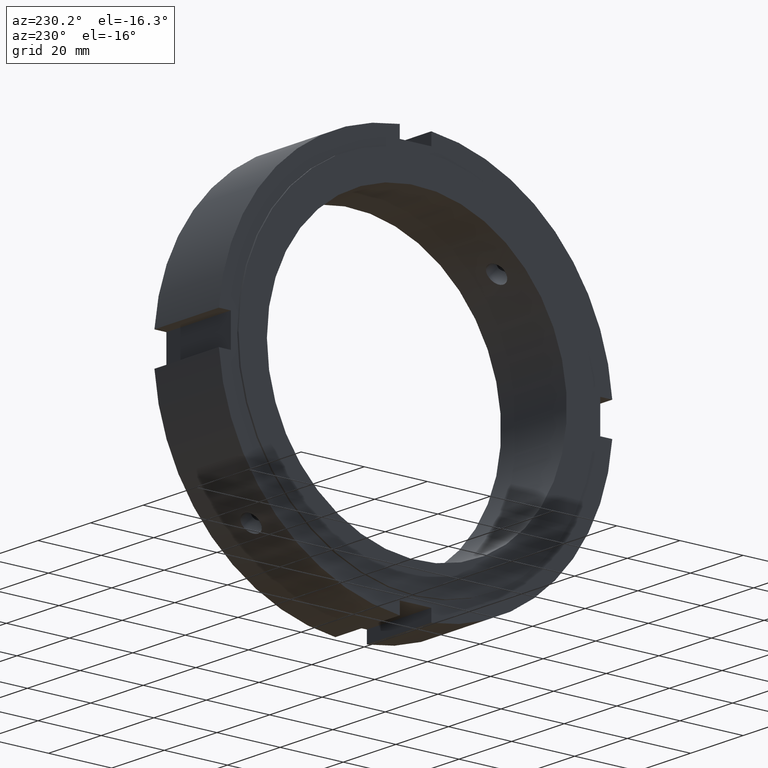
[diagram: clean part render]
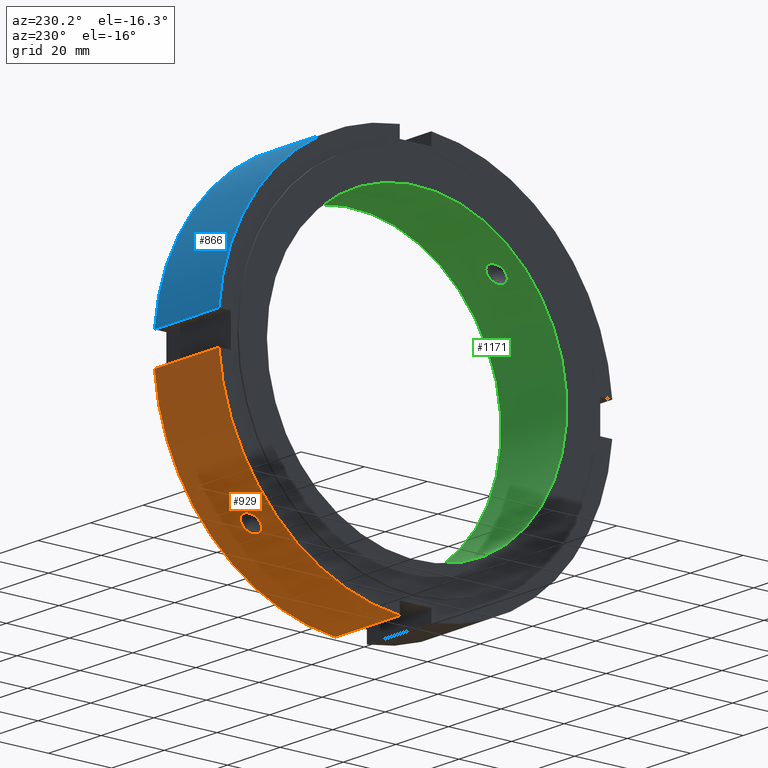
[diagram: same view with three faces highlighted in distinct colors, each labeled with its STEP entity id]
A machine part, auxiliary view with three faces highlighted in distinct colors.
Their STEP definitions:

[orange] entity #929 — the highlighted cylindrical surface (partial cylindrical patch) has radius 62.5 mm, axis along (1, 0, 0).
#439=CARTESIAN_POINT('',(9.999999999999986,41.94774695692054,-46.331809000277161));
#440=VERTEX_POINT('',#439);
#441=CARTESIAN_POINT('',(9.999999999999986,41.947746956920547,-46.331809000277147));
#442=CARTESIAN_POINT('',(10.389311472079699,41.947746956920547,-46.331809000277147));
#443=CARTESIAN_POINT('',(10.804528778918279,42.005612180828052,-46.279624275112923));
#444=CARTESIAN_POINT('',(11.568285816582263,42.239593456444702,-46.06616787121947));
#445=CARTESIAN_POINT('',(11.916830960488426,42.415559283118895,-45.904750942019504));
#446=CARTESIAN_POINT('',(12.467231026573746,42.818409226853156,-45.529217647564835));
#447=CARTESIAN_POINT('',(12.70579670309515,43.072138422683111,-45.290029537403164));
#448=CARTESIAN_POINT('',(13.022182957264352,43.622449764837668,-44.760225204025431));
#449=CARTESIAN_POINT('',(13.099999999999987,43.918889098569672,-44.469458549748765));
#450=CARTESIAN_POINT('',(13.099999999999987,44.469458549748772,-43.918889098569664));
#451=CARTESIAN_POINT('',(13.022182957264343,44.760225204025438,-43.622449764837668));
#452=CARTESIAN_POINT('',(12.705796703095125,45.290029537403178,-43.072138422683111));
#453=CARTESIAN_POINT('',(12.467231026573744,45.529217647564835,-42.818409226853149));
#454=CARTESIAN_POINT('',(11.916830960488415,45.904750942019497,-42.415559283118903));
#455=CARTESIAN_POINT('',(11.568285816582256,46.066167871219477,-42.239593456444709));
#456=CARTESIAN_POINT('',(10.80452877891827,46.27962427511293,-42.005612180828066));
#457=CARTESIAN_POINT('',(10.389311472079699,46.331809000277161,-41.94774695692054));
#458=CARTESIAN_POINT('',(9.610688527920274,46.331809000277161,-41.94774695692054));
#459=CARTESIAN_POINT('',(9.195471221081702,46.27962427511293,-42.005612180828066));
#460=CARTESIAN_POINT('',(8.431714183417716,46.066167871219477,-42.239593456444709));
#461=CARTESIAN_POINT('',(8.083169039511557,45.904750942019497,-42.415559283118903));
#462=CARTESIAN_POINT('',(7.532768973426229,45.529217647564835,-42.818409226853149));
#463=CARTESIAN_POINT('',(7.294203296904847,45.290029537403178,-43.072138422683111));
#464=CARTESIAN_POINT('',(6.97781704273563,44.760225204025438,-43.622449764837668));
#465=CARTESIAN_POINT('',(6.899999999999988,44.469458549748772,-43.918889098569664));
#466=CARTESIAN_POINT('',(6.899999999999984,43.918889098569672,-44.469458549748765));
#467=CARTESIAN_POINT('',(6.977817042735622,43.622449764837668,-44.760225204025431));
#468=CARTESIAN_POINT('',(7.294203296904823,43.072138422683111,-45.290029537403164));
#469=CARTESIAN_POINT('',(7.532768973426228,42.818409226853156,-45.529217647564835));
#470=CARTESIAN_POINT('',(8.083169039511549,42.415559283118895,-45.904750942019504));
#471=CARTESIAN_POINT('',(8.431714183417711,42.239593456444702,-46.06616787121947));
#472=CARTESIAN_POINT('',(9.195471221081697,42.005612180828052,-46.279624275112923));
#473=CARTESIAN_POINT('',(9.610688527920278,41.947746956920547,-46.331809000277147));
#474=CARTESIAN_POINT('',(9.999999999999989,41.947746956920547,-46.331809000277147));
#475=B_SPLINE_CURVE_WITH_KNOTS('',3,(#441,#442,#443,#444,#445,#446,#447,#448,#449,#450,#451,#452,#453,#454,#455,#456,#457,#458,#459,#460,#461,#462,#463,#464,#465,#466,#467,#468,#469,#470,#471,#472,#473,#474),.UNSPECIFIED.,.T.,.U.,(4,2,2,2,2,2,2,2,2,2,2,2,2,2,2,2,4),(0.0,0.116793441623914,0.233586883247827,0.350380300980696,0.467173718713565,0.583967136446434,0.700760554179303,0.817553995803216,0.93434743742713,1.051140879051044,1.167934320674957,1.284727738407826,1.401521156140694,1.518314573873564,1.635107991606433,1.751901433230346,1.86869487485426),.UNSPECIFIED.);
#476=EDGE_CURVE('',#440,#440,#475,.T.);
#573=CARTESIAN_POINT('',(0.499999999999985,4.999999999999985,-62.299678971885555));
#574=VERTEX_POINT('',#573);
#583=CARTESIAN_POINT('',(24.999999999999982,4.999999999999985,-62.299678971885555));
#584=VERTEX_POINT('',#583);
#585=CARTESIAN_POINT('',(24.999999999999982,4.999999999999985,-62.299678971885555));
#586=DIRECTION('',(-1.0,0.0,0.0));
#587=VECTOR('',#586,24.499999999999996);
#588=LINE('',#585,#587);
#589=EDGE_CURVE('',#584,#574,#588,.T.);
#894=CARTESIAN_POINT('',(12.749999999999984,0.0,0.0));
#895=DIRECTION('',(1.0,0.0,0.0));
#896=DIRECTION('',(0.0,1.0,0.0));
#897=AXIS2_PLACEMENT_3D('',#894,#895,#896);
#898=CYLINDRICAL_SURFACE('',#897,62.5);
#899=ORIENTED_EDGE('',*,*,#589,.T.);
#900=CARTESIAN_POINT('',(0.499999999999985,62.299678971885555,-4.999999999999996));
#901=VERTEX_POINT('',#900);
#902=CARTESIAN_POINT('',(0.499999999999985,0.0,0.0));
#903=DIRECTION('',(1.0,0.0,0.0));
#904=DIRECTION('',(0.0,1.0,0.0));
#905=AXIS2_PLACEMENT_3D('',#902,#903,#904);
#906=CIRCLE('',#905,62.5);
#907=EDGE_CURVE('',#574,#901,#906,.T.);
#908=ORIENTED_EDGE('',*,*,#907,.T.);
#909=CARTESIAN_POINT('',(24.999999999999982,62.299678971885555,-4.999999999999996));
#910=VERTEX_POINT('',#909);
#911=CARTESIAN_POINT('',(0.499999999999986,62.299678971885555,-4.999999999999996));
#912=DIRECTION('',(1.0,0.0,0.0));
#913=VECTOR('',#912,24.499999999999996);
#914=LINE('',#911,#913);
#915=EDGE_CURVE('',#901,#910,#914,.T.);
#916=ORIENTED_EDGE('',*,*,#915,.T.);
#917=CARTESIAN_POINT('',(24.999999999999982,0.0,0.0));
#918=DIRECTION('',(1.0,0.0,0.0));
#919=DIRECTION('',(0.0,1.0,0.0));
#920=AXIS2_PLACEMENT_3D('',#917,#918,#919);
#921=CIRCLE('',#920,62.5);
#922=EDGE_CURVE('',#584,#910,#921,.T.);
#923=ORIENTED_EDGE('',*,*,#922,.F.);
#924=EDGE_LOOP('',(#899,#908,#916,#923));
#925=FACE_OUTER_BOUND('',#924,.T.);
#926=ORIENTED_EDGE('',*,*,#476,.T.);
#927=EDGE_LOOP('',(#926));
#928=FACE_BOUND('',#927,.T.);
#929=ADVANCED_FACE('',(#925,#928),#898,.T.);

[blue] entity #866 — the highlighted cylindrical surface (partial cylindrical patch) has radius 62.5 mm, axis along (1, 0, 0).
#739=CARTESIAN_POINT('',(0.499999999999985,5.0,62.299678971885555));
#740=VERTEX_POINT('',#739);
#755=CARTESIAN_POINT('',(24.999999999999982,5.0,62.299678971885555));
#756=VERTEX_POINT('',#755);
#763=CARTESIAN_POINT('',(0.499999999999986,5.0,62.299678971885555));
#764=DIRECTION('',(1.0,0.0,0.0));
#765=VECTOR('',#764,24.499999999999996);
#766=LINE('',#763,#765);
#767=EDGE_CURVE('',#740,#756,#766,.T.);
#834=CARTESIAN_POINT('',(12.749999999999984,0.0,0.0));
#835=DIRECTION('',(1.0,0.0,0.0));
#836=DIRECTION('',(0.0,1.0,0.0));
#837=AXIS2_PLACEMENT_3D('',#834,#835,#836);
#838=CYLINDRICAL_SURFACE('',#837,62.5);
#839=ORIENTED_EDGE('',*,*,#767,.T.);
#840=CARTESIAN_POINT('',(24.999999999999982,62.299678971885555,4.999999999999996));
#841=VERTEX_POINT('',#840);
#842=CARTESIAN_POINT('',(24.999999999999982,0.0,0.0));
#843=DIRECTION('',(1.0,0.0,0.0));
#844=DIRECTION('',(0.0,1.0,0.0));
#845=AXIS2_PLACEMENT_3D('',#842,#843,#844);
#846=CIRCLE('',#845,62.5);
#847=EDGE_CURVE('',#841,#756,#846,.T.);
#848=ORIENTED_EDGE('',*,*,#847,.F.);
#849=CARTESIAN_POINT('',(0.499999999999985,62.299678971885555,4.999999999999996));
#850=VERTEX_POINT('',#849);
#851=CARTESIAN_POINT('',(24.999999999999982,62.299678971885555,4.999999999999996));
#852=DIRECTION('',(-1.0,0.0,0.0));
#853=VECTOR('',#852,24.499999999999996);
#854=LINE('',#851,#853);
#855=EDGE_CURVE('',#841,#850,#854,.T.);
#856=ORIENTED_EDGE('',*,*,#855,.T.);
#857=CARTESIAN_POINT('',(0.499999999999985,0.0,0.0));
#858=DIRECTION('',(1.0,0.0,0.0));
#859=DIRECTION('',(0.0,1.0,0.0));
#860=AXIS2_PLACEMENT_3D('',#857,#858,#859);
#861=CIRCLE('',#860,62.5);
#862=EDGE_CURVE('',#850,#740,#861,.T.);
#863=ORIENTED_EDGE('',*,*,#862,.T.);
#864=EDGE_LOOP('',(#839,#848,#856,#863));
#865=FACE_OUTER_BOUND('',#864,.T.);
#866=ADVANCED_FACE('',(#865),#838,.T.);

[green] entity #1171 — the highlighted cylindrical surface (bore or boss wall) has radius 47.5 mm, axis along (1, 0, 0).
#256=CARTESIAN_POINT('',(9.999999999999986,-35.707997366093899,31.32393532273732));
#257=VERTEX_POINT('',#256);
#258=CARTESIAN_POINT('',(9.999999999999988,-35.707997366093885,31.323935322737334));
#259=CARTESIAN_POINT('',(10.3893617571871,-35.707997366093885,31.323935322737334));
#260=CARTESIAN_POINT('',(10.804600658684809,-35.656700154917154,31.382715828295282));
#261=CARTESIAN_POINT('',(11.568343810667274,-35.446485138978545,31.619959043982444));
#262=CARTESIAN_POINT('',(11.916857461507034,-35.287376493856812,31.798222313056183));
#263=CARTESIAN_POINT('',(12.46720441284447,-34.916200275920815,32.205354217712291));
#264=CARTESIAN_POINT('',(12.705762510545654,-34.679332262130067,32.461359042533218));
#265=CARTESIAN_POINT('',(13.022163364152522,-34.152777854461931,33.014900906377683));
#266=CARTESIAN_POINT('',(13.099999999999987,-33.862892276107488,33.312251936614523));
#267=CARTESIAN_POINT('',(13.099999999999987,-33.312251936614487,33.86289227610753));
#268=CARTESIAN_POINT('',(13.022163364152519,-33.01490090637764,34.152777854461981));
#269=CARTESIAN_POINT('',(12.70576251054565,-32.461359042533168,34.679332262130117));
#270=CARTESIAN_POINT('',(12.46720441284447,-32.205354217712248,34.916200275920858));
#271=CARTESIAN_POINT('',(11.916857461507034,-31.798222313056144,35.28737649385684));
#272=CARTESIAN_POINT('',(11.568343810667274,-31.619959043982405,35.446485138978581));
#273=CARTESIAN_POINT('',(10.80460065868481,-31.382715828295243,35.656700154917189));
#274=CARTESIAN_POINT('',(10.3893617571871,-31.323935322737292,35.707997366093934));
#275=CARTESIAN_POINT('',(9.610638242812877,-31.323935322737292,35.707997366093934));
#276=CARTESIAN_POINT('',(9.195399341315165,-31.382715828295243,35.656700154917189));
#277=CARTESIAN_POINT('',(8.431656189332701,-31.619959043982405,35.446485138978581));
#278=CARTESIAN_POINT('',(8.083142538492943,-31.798222313056144,35.28737649385684));
#279=CARTESIAN_POINT('',(7.532795587155505,-32.205354217712248,34.916200275920858));
#280=CARTESIAN_POINT('',(7.294237489454321,-32.461359042533168,34.67933226213011));
#281=CARTESIAN_POINT('',(6.977836635847455,-33.01490090637764,34.152777854461974));
#282=CARTESIAN_POINT('',(6.899999999999986,-33.31225193661448,33.862892276107523));
#283=CARTESIAN_POINT('',(6.899999999999986,-33.862892276107488,33.312251936614523));
#284=CARTESIAN_POINT('',(6.977836635847455,-34.152777854461931,33.01490090637769));
#285=CARTESIAN_POINT('',(7.294237489454321,-34.679332262130067,32.461359042533218));
#286=CARTESIAN_POINT('',(7.532795587155503,-34.916200275920815,32.205354217712291));
#287=CARTESIAN_POINT('',(8.083142538492941,-35.287376493856812,31.798222313056183));
#288=CARTESIAN_POINT('',(8.431656189332699,-35.446485138978545,31.619959043982444));
#289=CARTESIAN_POINT('',(9.195399341315163,-35.656700154917154,31.382715828295282));
#290=CARTESIAN_POINT('',(9.610638242812877,-35.707997366093892,31.323935322737331));
#291=CARTESIAN_POINT('',(9.999999999999988,-35.707997366093892,31.323935322737331));
#292=B_SPLINE_CURVE_WITH_KNOTS('',3,(#258,#259,#260,#261,#262,#263,#264,#265,#266,#267,#268,#269,#270,#271,#272,#273,#274,#275,#276,#277,#278,#279,#280,#281,#282,#283,#284,#285,#286,#287,#288,#289,#290,#291),.UNSPECIFIED.,.T.,.U.,(4,2,2,2,2,2,2,2,2,2,2,2,2,2,2,2,4),(0.0,0.116808527156133,0.233617054312267,0.350425509727376,0.467233965142486,0.584042420557596,0.700850875972706,0.817659403128839,0.934467930284972,1.051276457441105,1.168084984597239,1.284893440012348,1.401701895427458,1.518510350842568,1.635318806257678,1.752127333413811,1.868935860569944),.UNSPECIFIED.);
#293=EDGE_CURVE('',#257,#257,#292,.T.);
#486=CARTESIAN_POINT('',(9.999999999999986,31.323935322737313,-35.707997366093906));
#487=VERTEX_POINT('',#486);
#488=CARTESIAN_POINT('',(9.999999999999986,31.323935322737309,-35.707997366093906));
#489=CARTESIAN_POINT('',(9.610638242812877,31.323935322737309,-35.707997366093906));
#490=CARTESIAN_POINT('',(9.195399341315165,31.382715828295261,-35.656700154917175));
#491=CARTESIAN_POINT('',(8.431656189332701,31.619959043982423,-35.446485138978559));
#492=CARTESIAN_POINT('',(8.083142538492943,31.798222313056161,-35.287376493856826));
#493=CARTESIAN_POINT('',(7.532795587155505,32.205354217712269,-34.916200275920843));
#494=CARTESIAN_POINT('',(7.294237489454321,32.461359042533189,-34.679332262130089));
#495=CARTESIAN_POINT('',(6.977836635847455,33.014900906377655,-34.152777854461952));
#496=CARTESIAN_POINT('',(6.899999999999986,33.312251936614501,-33.862892276107516));
#497=CARTESIAN_POINT('',(6.899999999999986,33.862892276107502,-33.312251936614501));
#498=CARTESIAN_POINT('',(6.977836635847452,34.152777854461945,-33.014900906377662));
#499=CARTESIAN_POINT('',(7.294237489454321,34.679332262130089,-32.461359042533196));
#500=CARTESIAN_POINT('',(7.532795587155503,34.916200275920836,-32.205354217712269));
#501=CARTESIAN_POINT('',(8.08314253849294,35.287376493856826,-31.798222313056165));
#502=CARTESIAN_POINT('',(8.431656189332699,35.446485138978559,-31.619959043982423));
#503=CARTESIAN_POINT('',(9.195399341315163,35.656700154917168,-31.382715828295261));
#504=CARTESIAN_POINT('',(9.610638242812875,35.707997366093906,-31.323935322737313));
#505=CARTESIAN_POINT('',(10.3893617571871,35.707997366093906,-31.323935322737313));
#506=CARTESIAN_POINT('',(10.804600658684809,35.656700154917168,-31.382715828295261));
#507=CARTESIAN_POINT('',(11.568343810667274,35.446485138978559,-31.619959043982423));
#508=CARTESIAN_POINT('',(11.916857461507034,35.287376493856826,-31.798222313056165));
#509=CARTESIAN_POINT('',(12.46720441284447,34.916200275920836,-32.205354217712269));
#510=CARTESIAN_POINT('',(12.705762510545654,34.679332262130089,-32.461359042533203));
#511=CARTESIAN_POINT('',(13.022163364152522,34.152777854461945,-33.014900906377669));
#512=CARTESIAN_POINT('',(13.099999999999987,33.862892276107502,-33.312251936614501));
#513=CARTESIAN_POINT('',(13.099999999999987,33.312251936614501,-33.862892276107516));
#514=CARTESIAN_POINT('',(13.022163364152522,33.014900906377648,-34.152777854461952));
#515=CARTESIAN_POINT('',(12.705762510545654,32.461359042533182,-34.679332262130089));
#516=CARTESIAN_POINT('',(12.467204412844469,32.205354217712269,-34.916200275920843));
#517=CARTESIAN_POINT('',(11.916857461507032,31.798222313056161,-35.287376493856826));
#518=CARTESIAN_POINT('',(11.568343810667272,31.619959043982423,-35.446485138978559));
#519=CARTESIAN_POINT('',(10.80460065868481,31.382715828295261,-35.656700154917175));
#520=CARTESIAN_POINT('',(10.3893617571871,31.323935322737309,-35.707997366093906));
#521=CARTESIAN_POINT('',(9.999999999999986,31.323935322737309,-35.707997366093906));
#522=B_SPLINE_CURVE_WITH_KNOTS('',3,(#488,#489,#490,#491,#492,#493,#494,#495,#496,#497,#498,#499,#500,#501,#502,#503,#504,#505,#506,#507,#508,#509,#510,#511,#512,#513,#514,#515,#516,#517,#518,#519,#520,#521),.UNSPECIFIED.,.T.,.U.,(4,2,2,2,2,2,2,2,2,2,2,2,2,2,2,2,4),(0.0,0.116808527156133,0.233617054312266,0.350425509727376,0.467233965142486,0.584042420557596,0.700850875972705,0.817659403128839,0.934467930284972,1.051276457441105,1.168084984597239,1.284893440012348,1.401701895427458,1.518510350842568,1.635318806257678,1.752127333413811,1.868935860569944),.UNSPECIFIED.);
#523=EDGE_CURVE('',#487,#487,#522,.T.);
#1002=CARTESIAN_POINT('',(24.999999999999986,47.5,0.0));
#1003=VERTEX_POINT('',#1002);
#1004=CARTESIAN_POINT('',(24.999999999999986,0.0,0.0));
#1005=DIRECTION('',(1.0,0.0,0.0));
#1006=DIRECTION('',(0.0,1.0,0.0));
#1007=AXIS2_PLACEMENT_3D('',#1004,#1005,#1006);
#1008=CIRCLE('',#1007,47.5);
#1009=EDGE_CURVE('',#1003,#1003,#1008,.T.);
#1095=CARTESIAN_POINT('',(-1.364903E-014,47.5,0.0));
#1096=VERTEX_POINT('',#1095);
#1097=CARTESIAN_POINT('',(-1.364794E-014,0.0,0.0));
#1098=DIRECTION('',(1.0,0.0,0.0));
#1099=DIRECTION('',(0.0,1.0,0.0));
#1100=AXIS2_PLACEMENT_3D('',#1097,#1098,#1099);
#1101=CIRCLE('',#1100,47.5);
#1102=EDGE_CURVE('',#1096,#1096,#1101,.T.);
#1154=CARTESIAN_POINT('',(12.499999999999986,0.0,0.0));
#1155=DIRECTION('',(1.0,0.0,0.0));
#1156=DIRECTION('',(0.0,1.0,0.0));
#1157=AXIS2_PLACEMENT_3D('',#1154,#1155,#1156);
#1158=CYLINDRICAL_SURFACE('',#1157,47.5);
#1159=ORIENTED_EDGE('',*,*,#1102,.F.);
#1160=EDGE_LOOP('',(#1159));
#1161=FACE_OUTER_BOUND('',#1160,.T.);
#1162=ORIENTED_EDGE('',*,*,#293,.T.);
#1163=EDGE_LOOP('',(#1162));
#1164=FACE_BOUND('',#1163,.T.);
#1165=ORIENTED_EDGE('',*,*,#523,.T.);
#1166=EDGE_LOOP('',(#1165));
#1167=FACE_BOUND('',#1166,.T.);
#1168=ORIENTED_EDGE('',*,*,#1009,.T.);
#1169=EDGE_LOOP('',(#1168));
#1170=FACE_BOUND('',#1169,.T.);
#1171=ADVANCED_FACE('',(#1161,#1164,#1167,#1170),#1158,.F.);